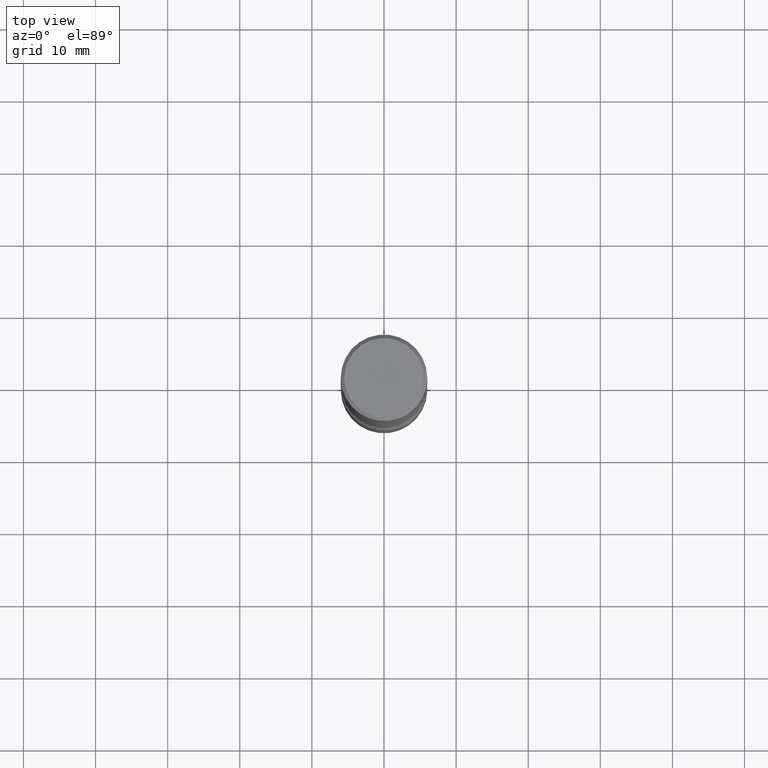
[diagram: clean part render]
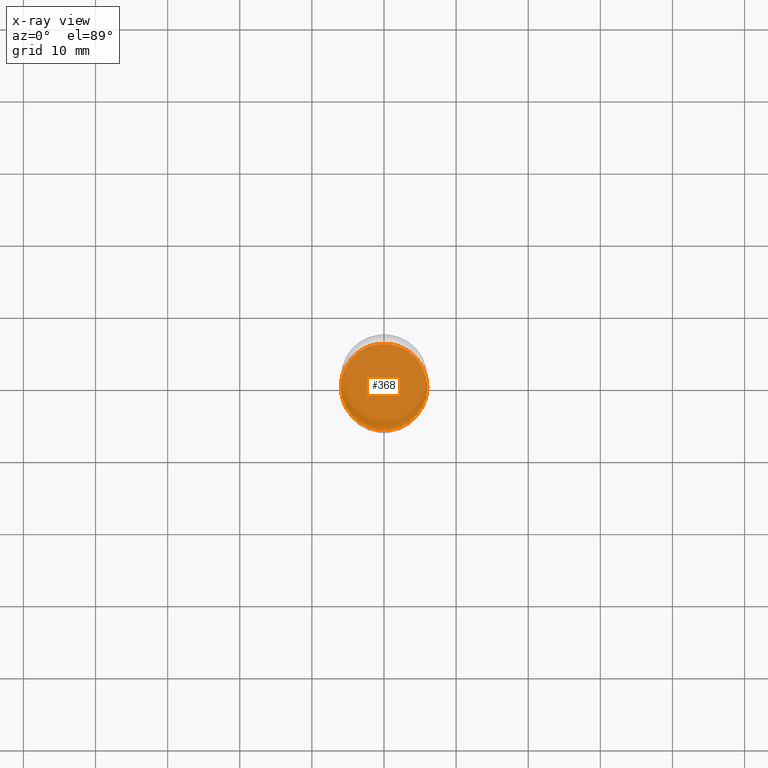
[diagram: x-ray — body ghosted, one internal face saturated and labeled with its STEP entity id]
A machine part, top view, then the same camera in x-ray: the body is ghosted and one INTERNAL B-rep face — a face not visible from any outside direction — is saturated and labeled: STEP entity #368.
In plain terms, the highlighted planar face has unit normal (0, -0, -1).
Its self-contained STEP definition (entity closure, byte-faithful):
#1 = EDGE_LOOP ( 'NONE', ( #409, #160 ) ) ;
#12 = CARTESIAN_POINT ( 'NONE',  ( 7.124628819939777829E-29, -1.017208173258562247E-14, -2.913400000000000212 ) ) ;
#41 = AXIS2_PLACEMENT_3D ( 'NONE', #12, #255, #388 ) ;
#42 = DIRECTION ( 'NONE',  ( -1.000000000000000000, 6.982962677686265922E-15, -4.876176775795935793E-29 ) ) ;
#95 = CARTESIAN_POINT ( 'NONE',  ( 7.124628819939777829E-29, -1.017208173258562247E-14, -2.913400000000000212 ) ) ;
#120 = VERTEX_POINT ( 'NONE', #503 ) ;
#125 = CIRCLE ( 'NONE', #41, 0.2362000000000001321 ) ;
#160 = ORIENTED_EDGE ( 'NONE', *, *, #246, .T. ) ;
#246 = EDGE_CURVE ( 'NONE', #120, #458, #125, .T. ) ;
#251 = AXIS2_PLACEMENT_3D ( 'NONE', #299, #512, #42 ) ;
#255 = DIRECTION ( 'NONE',  ( -2.445468806185136597E-29, 3.491481338843145583E-15, 1.000000000000000000 ) ) ;
#266 = DIRECTION ( 'NONE',  ( 1.000000000000000000, -6.982962677686269077E-15, 0.000000000000000000 ) ) ;
#299 = CARTESIAN_POINT ( 'NONE',  ( 7.124628819939777829E-29, -1.017208173258562247E-14, -2.913400000000000212 ) ) ;
#368 = ADVANCED_FACE ( 'NONE', ( #480 ), #435, .F. ) ;
#375 = EDGE_CURVE ( 'NONE', #458, #120, #402, .T. ) ;
#388 = DIRECTION ( 'NONE',  ( 1.000000000000000000, -6.982962677686269077E-15, 0.000000000000000000 ) ) ;
#402 = CIRCLE ( 'NONE', #539, 0.2362000000000001321 ) ;
#409 = ORIENTED_EDGE ( 'NONE', *, *, #375, .T. ) ;
#435 = PLANE ( 'NONE',  #251 ) ;
#458 = VERTEX_POINT ( 'NONE', #533 ) ;
#480 = FACE_OUTER_BOUND ( 'NONE', #1, .T. ) ;
#503 = CARTESIAN_POINT ( 'NONE',  ( -0.2362000000000001321, -1.014333014925670672E-14, -2.913400000000000212 ) ) ;
#512 = DIRECTION ( 'NONE',  ( 2.438088387897960049E-29, -3.491481338843145188E-15, -1.000000000000000000 ) ) ;
#526 = DIRECTION ( 'NONE',  ( -2.445468806185136597E-29, 3.491481338843145583E-15, 1.000000000000000000 ) ) ;
#533 = CARTESIAN_POINT ( 'NONE',  ( 0.2362000000000001321, -1.182145751705511899E-14, -2.913400000000000212 ) ) ;
#539 = AXIS2_PLACEMENT_3D ( 'NONE', #95, #526, #266 ) ;